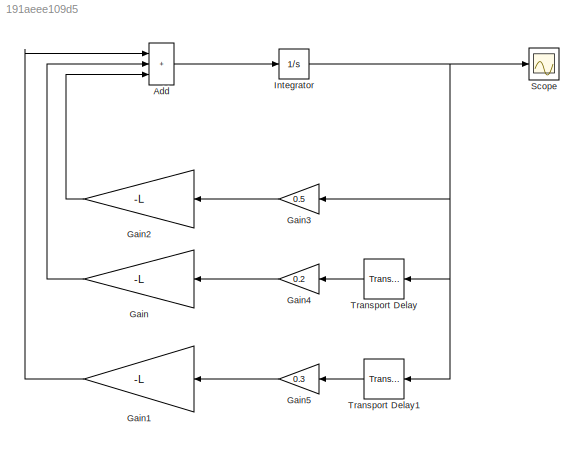
MODEL slx_191aeee109d5
KIND model
CONFIG AbsTol = auto
CONFIG EnableMultiTasking = off
CONFIG FixedStep = auto
CONFIG MaxStep = 1e-3
CONFIG MinStep = auto
CONFIG RelTol = 1e-4
CONFIG SampleTimeConstraint = Unconstrained
CONFIG SolverName = VariableStepAuto
CONFIG StartTime = 0
CONFIG StopTime = 30
BLOCK [Sum] Add
  IconShape = rectangular
  Inputs = +++
BLOCK [Gain] Gain
  Gain = -L
  Multiplication = Matrix(K*u) (u vector)
BLOCK [Gain] Gain1
  Gain = -L
  Multiplication = Matrix(K*u) (u vector)
BLOCK [Gain] Gain2
  Gain = -L
  Multiplication = Matrix(K*u) (u vector)
BLOCK [Gain] Gain3
  Gain = 0.5
BLOCK [Gain] Gain4
  Gain = 0.2
BLOCK [Gain] Gain5
  Gain = 0.3
BLOCK [Integrator] Integrator
  InitialCondition = x0
BLOCK [Scope] Scope
  Floating = off
  NumInputPorts = 1
  ScopeSpecificationString = Simulink.scopes.TimeScopeBlockCfg('CurrentConfiguration', extmgr.ConfigurationSet(extmgr.Configuration('Core','General UI',true,'FigureColor',[1 1 1]),extmgr.Configuration('Core','Source UI',true),extmgr.Configuration('Sources','WiredSimulink',true,'DataLogging',true),extmgr.Configuration('Visuals','Time Domain',true,'PlotType','Line','SerializedDisplays',{struct('MinYLimReal','0.125','MaxYLimReal...<+2642ch>
BLOCK [TransportDelay] Transport Delay
  BufferSize = 1024*8
  DelayTime = tau
BLOCK [TransportDelay] Transport Delay1
  BufferSize = 1024*8
  DelayTime = 2*tau
LINE Add:1 -> Integrator:1
LINE Gain1:1 -> Add:1
LINE Gain2:1 -> Add:3
LINE Gain3:1 -> Gain2:1
LINE Gain4:1 -> Gain:1
LINE Gain5:1 -> Gain1:1
LINE Gain:1 -> Add:2
NET Integrator:1 -> Gain3:1, Scope:1, Transport Delay1:1, Transport Delay:1
LINE Transport Delay1:1 -> Gain5:1
LINE Transport Delay:1 -> Gain4:1
note: NET lines group one-source signal fan-out (src -> all destinations, sorted); 1:1 wires keep LINE
